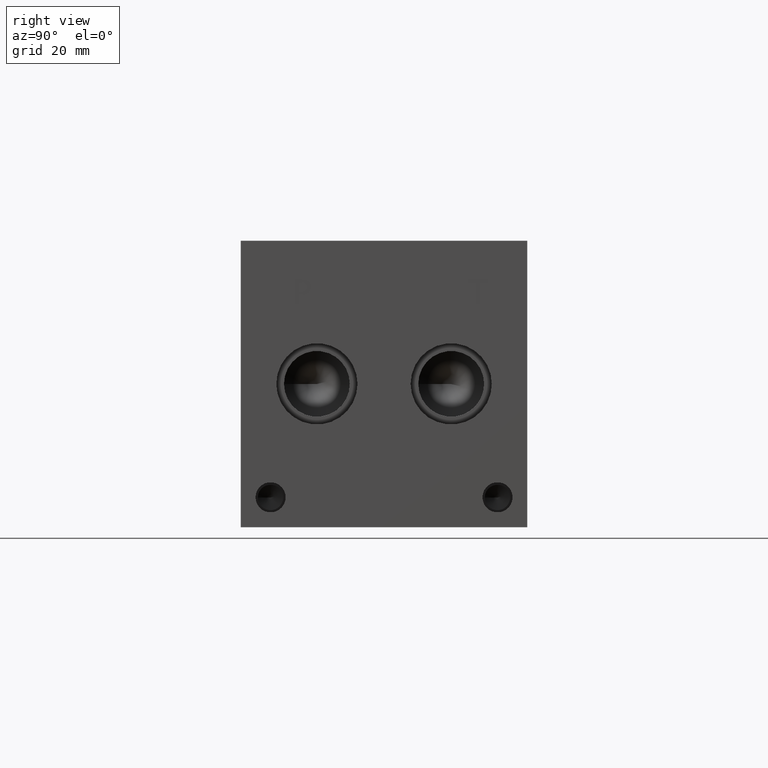
[diagram: clean part render]
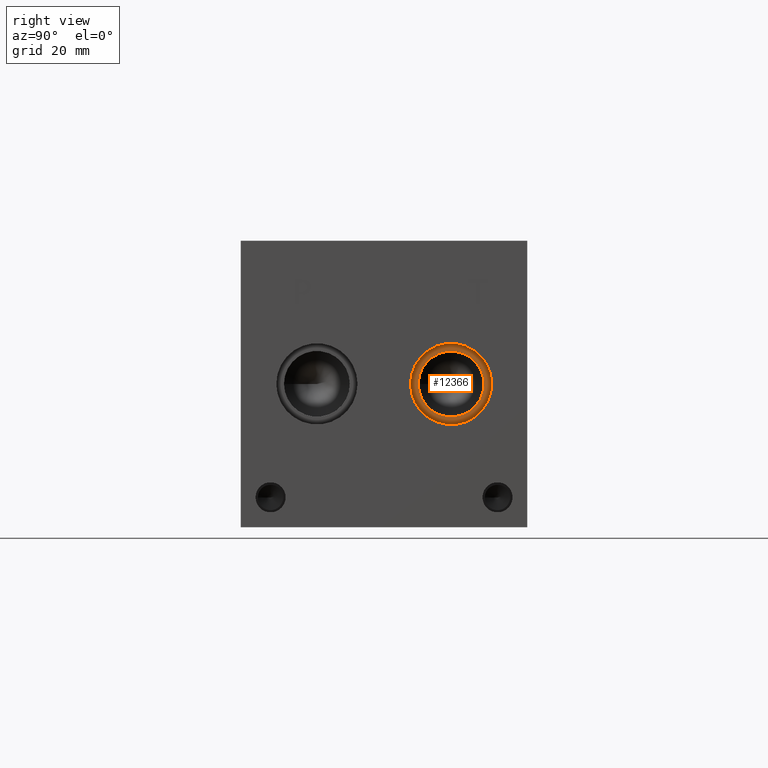
[diagram: same view with one face highlighted and labeled with its STEP entity id]
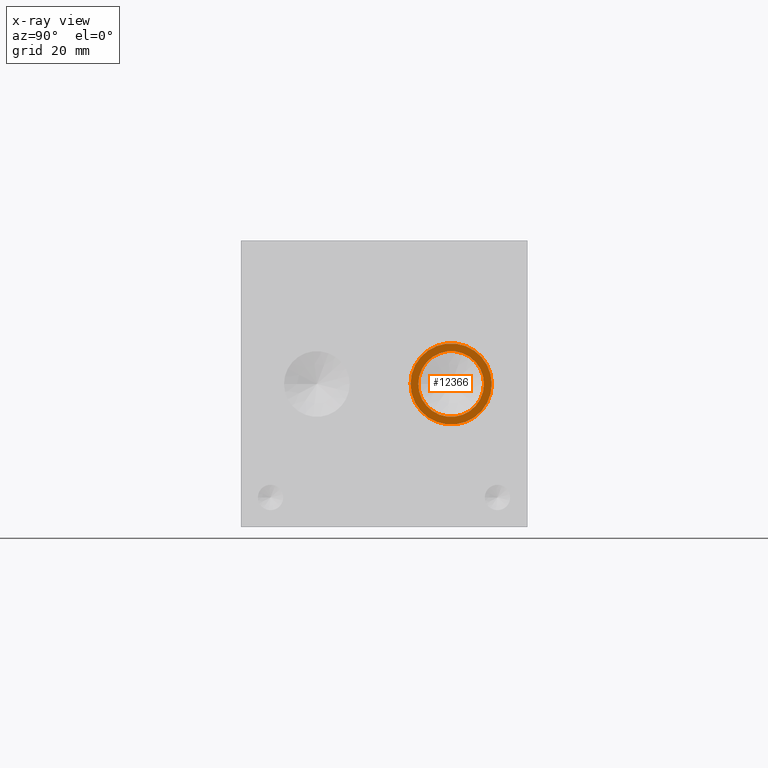
[diagram: x-ray of the same camera — body ghosted, the highlighted face saturated]
A machine part, right view. The second image highlights one B-rep face of the part: STEP entity #12366.
The next image is the same camera in x-ray: the body ghosted, the highlighted face saturated — about 0% of this face is hidden behind the body in this view.
In plain terms, the highlighted planar face has unit normal (1, 0, 0).
Its self-contained STEP definition (entity closure, byte-faithful):
#186=CIRCLE('',#12913,10.795);
#187=CIRCLE('',#12914,10.795);
#188=CIRCLE('',#12915,8.7376);
#459=FACE_BOUND('',#2085,.T.);
#840=PLANE('',#12912);
#1377=FACE_OUTER_BOUND('',#2084,.T.);
#2084=EDGE_LOOP('',(#10538,#10539));
#2085=EDGE_LOOP('',(#10540));
#5816=VERTEX_POINT('',#20857);
#5817=VERTEX_POINT('',#20858);
#5818=VERTEX_POINT('',#20861);
#7467=EDGE_CURVE('',#5816,#5817,#186,.T.);
#7468=EDGE_CURVE('',#5817,#5816,#187,.T.);
#7469=EDGE_CURVE('',#5818,#5818,#188,.T.);
#10538=ORIENTED_EDGE('',*,*,#7467,.T.);
#10539=ORIENTED_EDGE('',*,*,#7468,.T.);
#10540=ORIENTED_EDGE('',*,*,#7469,.F.);
#12366=ADVANCED_FACE('',(#1377,#459),#840,.T.);
#12912=AXIS2_PLACEMENT_3D('',#20856,#15078,#15079);
#12913=AXIS2_PLACEMENT_3D('',#20859,#15080,#15081);
#12914=AXIS2_PLACEMENT_3D('',#20860,#15082,#15083);
#12915=AXIS2_PLACEMENT_3D('',#20862,#15084,#15085);
#15078=DIRECTION('center_axis',(1.,0.,0.));
#15079=DIRECTION('ref_axis',(0.,1.,0.));
#15080=DIRECTION('center_axis',(1.,0.,0.));
#15081=DIRECTION('ref_axis',(0.,1.,0.));
#15082=DIRECTION('center_axis',(1.,0.,0.));
#15083=DIRECTION('ref_axis',(0.,1.,0.));
#15084=DIRECTION('center_axis',(1.,0.,0.));
#15085=DIRECTION('ref_axis',(0.,1.,0.));
#20856=CARTESIAN_POINT('Origin',(146.558,55.9562,38.1));
#20857=CARTESIAN_POINT('',(146.558,66.7512,38.1));
#20858=CARTESIAN_POINT('',(146.558,45.1612,38.1));
#20859=CARTESIAN_POINT('Origin',(146.558,55.9562,38.1));
#20860=CARTESIAN_POINT('Origin',(146.558,55.9562,38.1));
#20861=CARTESIAN_POINT('',(146.558,47.2186,38.1));
#20862=CARTESIAN_POINT('Origin',(146.558,55.9562,38.1));